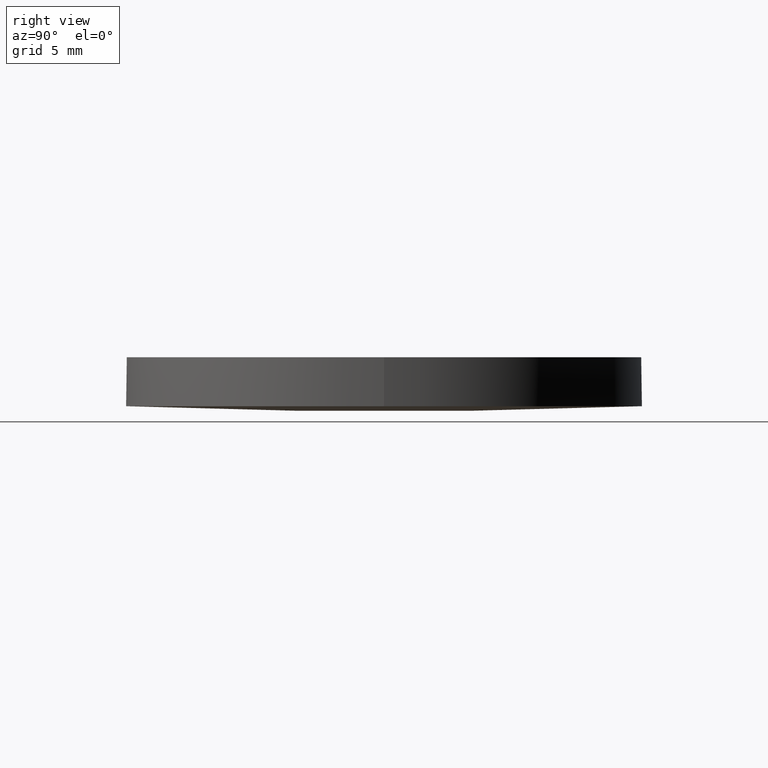
[diagram: clean part render]
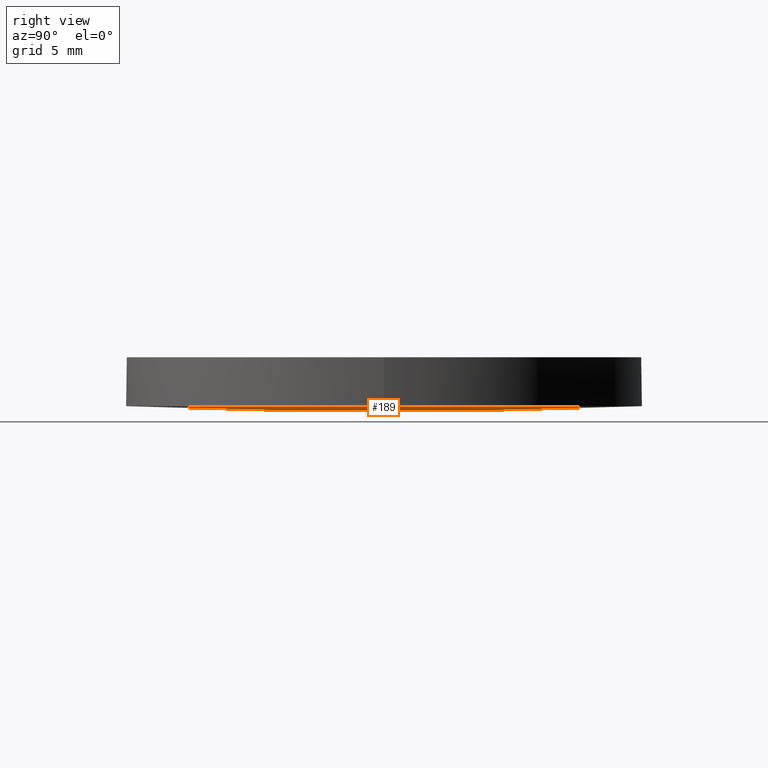
[diagram: same view with one face highlighted and labeled with its STEP entity id]
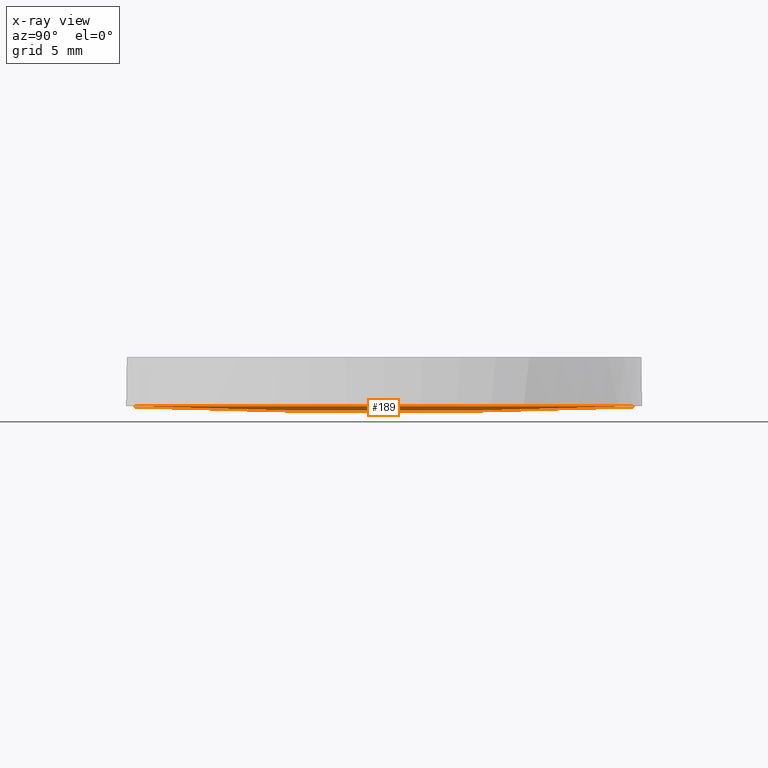
[diagram: x-ray of the same camera — body ghosted, the highlighted face saturated]
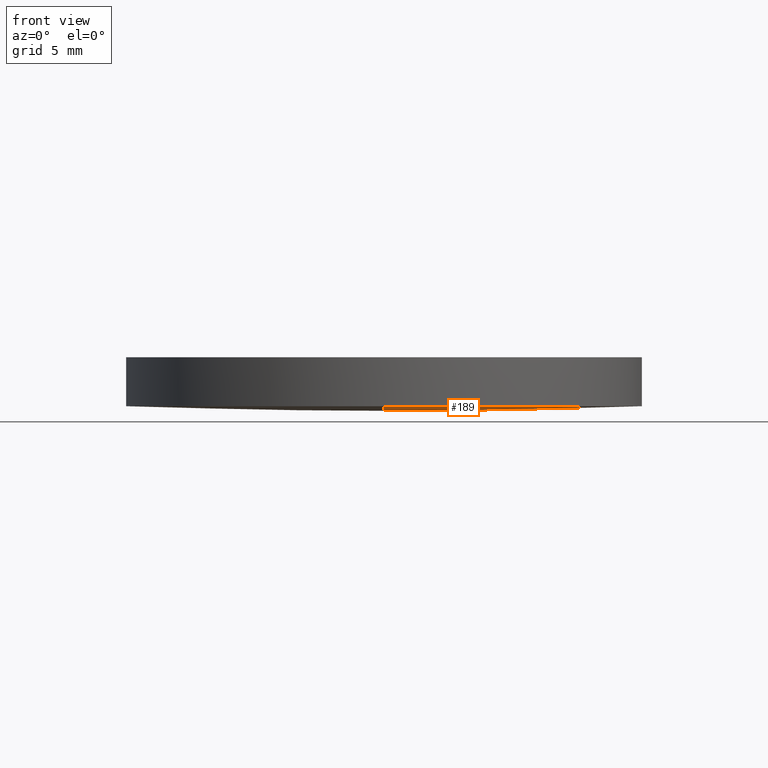
[diagram: same view with one face highlighted and labeled with its STEP entity id]
A machine part, right view. The second image highlights one B-rep face of the part: STEP entity #189.
The next image is the same camera in x-ray: the body ghosted, the highlighted face saturated — about 0% of this face is hidden behind the body in this view.
A second angle (front view) of the same face is appended — the face is thin or edge-on in the first view.
In plain terms, the highlighted face is a freeform B-spline surface patch.
Its self-contained STEP definition (entity closure, byte-faithful):
#5 = AXIS2_PLACEMENT_3D ( 'NONE', #37, #132, #112 ) ;
#17 = CARTESIAN_POINT ( 'NONE',  ( 19.04999999999999700, -8.881784197001250400E-016, 0.3812727041324490100 ) ) ;
#23 = EDGE_LOOP ( 'NONE', ( #26, #84, #30 ) ) ;
#25 = CARTESIAN_POINT ( 'NONE',  ( 19.16948050838902200, 6.429674135837180100, 0.2557364583264832300 ) ) ;
#26 = ORIENTED_EDGE ( 'NONE', *, *, #124, .T. ) ;
#30 = ORIENTED_EDGE ( 'NONE', *, *, #33, .T. ) ;
#33 = EDGE_CURVE ( 'NONE', #232, #63, #205, .T. ) ;
#37 = CARTESIAN_POINT ( 'NONE',  ( 0.0000000000000000000, 5.684341886080800200E-014, 476.1000000000000200 ) ) ;
#38 = CARTESIAN_POINT ( 'NONE',  ( 19.16948050838901800, -6.429674135837133000, 0.2557364583264818400 ) ) ;
#40 = DIRECTION ( 'NONE',  ( 1.000000000000000000, -1.776356839400250500E-015, 0.0000000000000000000 ) ) ;
#57 = CARTESIAN_POINT ( 'NONE',  ( 6.391985406100275200, 6.429674135837181800, -0.1302301707433202200 ) ) ;
#59 = DIRECTION ( 'NONE',  ( -0.0000000000000000000, -0.0000000000000000000, -1.000000000000000000 ) ) ;
#63 = VERTEX_POINT ( 'NONE', #17 ) ;
#70 = EDGE_CURVE ( 'NONE', #173, #232, #106, .T. ) ;
#77 = DIRECTION ( 'NONE',  ( -0.0000000000000000000, -0.0000000000000000000, -1.000000000000000000 ) ) ;
#78 = CARTESIAN_POINT ( 'NONE',  ( 6.384996450451490400, -19.27847571906545100, 0.3904768937777455300 ) ) ;
#84 = ORIENTED_EDGE ( 'NONE', *, *, #70, .T. ) ;
#90 = FACE_OUTER_BOUND ( 'NONE', #23, .T. ) ;
#95 = CARTESIAN_POINT ( 'NONE',  ( 19.14852072194215900, -19.27847571906545800, 0.7760215094227525000 ) ) ;
#106 = CIRCLE ( 'NONE', #5, 476.1000000000000200 ) ;
#107 = AXIS2_PLACEMENT_3D ( 'NONE', #233, #59, #40 ) ;
#112 = DIRECTION ( 'NONE',  ( -2.441384245984629400E-016, -1.000000000000000000, 0.0000000000000000000 ) ) ;
#115 = CARTESIAN_POINT ( 'NONE',  ( -4.662936703425659800E-015, -8.881784197001250400E-016, 0.3812727041324490100 ) ) ;
#122 = CARTESIAN_POINT ( 'NONE',  ( 19.14852072194216600, 19.27847571906550800, 0.7760215094227525000 ) ) ;
#124 = EDGE_CURVE ( 'NONE', #63, #173, #186, .T. ) ;
#128 =( BOUNDED_SURFACE ( )  B_SPLINE_SURFACE ( 3, 3, ( 
 ( #136, #78, #196, #95 ),
 ( #215, #180, #235, #38 ),
 ( #166, #57, #182, #25 ),
 ( #160, #185, #224, #122 ) ),
 .UNSPECIFIED., .F., .F., .F. ) 
 B_SPLINE_SURFACE_WITH_KNOTS ( ( 4, 4 ),
 ( 4, 4 ),
 ( 0.0000000000000000000, 1.000000000000000000 ),
 ( 0.0000000000000000000, 1.000000000000000000 ),
 .UNSPECIFIED. ) 
 GEOMETRIC_REPRESENTATION_ITEM ( )  RATIONAL_B_SPLINE_SURFACE ( (
 ( 1.000000000000000000, 0.9998649092693817600, 0.9998649092693817600, 1.000000000000000000),
 ( 0.9994532284621189300, 0.9993182115952672400, 0.9993182115952672400, 0.9994532284621189300),
 ( 0.9994532284621189300, 0.9993182115952672400, 0.9993182115952672400, 0.9994532284621189300),
 ( 1.000000000000000000, 0.9998649092693817600, 0.9998649092693817600, 1.000000000000000000) ) ) 
 REPRESENTATION_ITEM ( '' )  SURFACE ( )  );
#132 = DIRECTION ( 'NONE',  ( 1.000000000000000000, -2.441384245984629900E-016, -2.109852854684000100E-016 ) ) ;
#136 = CARTESIAN_POINT ( 'NONE',  ( -1.050743262233151200E-013, -19.27847571906545500, 0.3904768937777469700 ) ) ;
#143 = CARTESIAN_POINT ( 'NONE',  ( -9.571881449258180800E-014, 19.05000000000018500, 0.3812727041324557900 ) ) ;
#152 = DIRECTION ( 'NONE',  ( 1.000000000000000000, 0.0000000000000000000, 0.0000000000000000000 ) ) ;
#160 = CARTESIAN_POINT ( 'NONE',  ( -9.566109284189036800E-014, 19.27847571906551100, 0.3904768937777469700 ) ) ;
#166 = CARTESIAN_POINT ( 'NONE',  ( -9.890784054705136200E-014, 6.429674135837184500, -0.1302301707433188300 ) ) ;
#167 = CARTESIAN_POINT ( 'NONE',  ( -1.050204884697833200E-013, -19.05000000000012900, 0.3812727041324557900 ) ) ;
#173 = VERTEX_POINT ( 'NONE', #167 ) ;
#180 = CARTESIAN_POINT ( 'NONE',  ( 6.391985406100271700, -6.429674135837129400, -0.1302301707433216300 ) ) ;
#182 = CARTESIAN_POINT ( 'NONE',  ( 12.78267556523273800, 6.429674135837180900, -0.001557245200521032600 ) ) ;
#185 = CARTESIAN_POINT ( 'NONE',  ( 6.384996450451500200, 19.27847571906550800, 0.3904768937777455300 ) ) ;
#186 = CIRCLE ( 'NONE', #230, 19.05000000000000100 ) ;
#189 = ADVANCED_FACE ( 'NONE', ( #90 ), #128, .T. ) ;
#196 = CARTESIAN_POINT ( 'NONE',  ( 12.76869907014985700, -19.27847571906545500, 0.5190091291730112300 ) ) ;
#205 = CIRCLE ( 'NONE', #107, 19.05000000000000100 ) ;
#215 = CARTESIAN_POINT ( 'NONE',  ( -1.020473015754609000E-013, -6.429674135837128500, -0.1302301707433202400 ) ) ;
#224 = CARTESIAN_POINT ( 'NONE',  ( 12.76869907014986400, 19.27847571906550400, 0.5190091291730112300 ) ) ;
#230 = AXIS2_PLACEMENT_3D ( 'NONE', #115, #77, #152 ) ;
#232 = VERTEX_POINT ( 'NONE', #143 ) ;
#233 = CARTESIAN_POINT ( 'NONE',  ( -4.662936703425659800E-015, -8.881784197001250400E-016, 0.3812727041324490100 ) ) ;
#235 = CARTESIAN_POINT ( 'NONE',  ( 12.78267556523273500, -6.429674135837130300, -0.001557245200522387800 ) ) ;